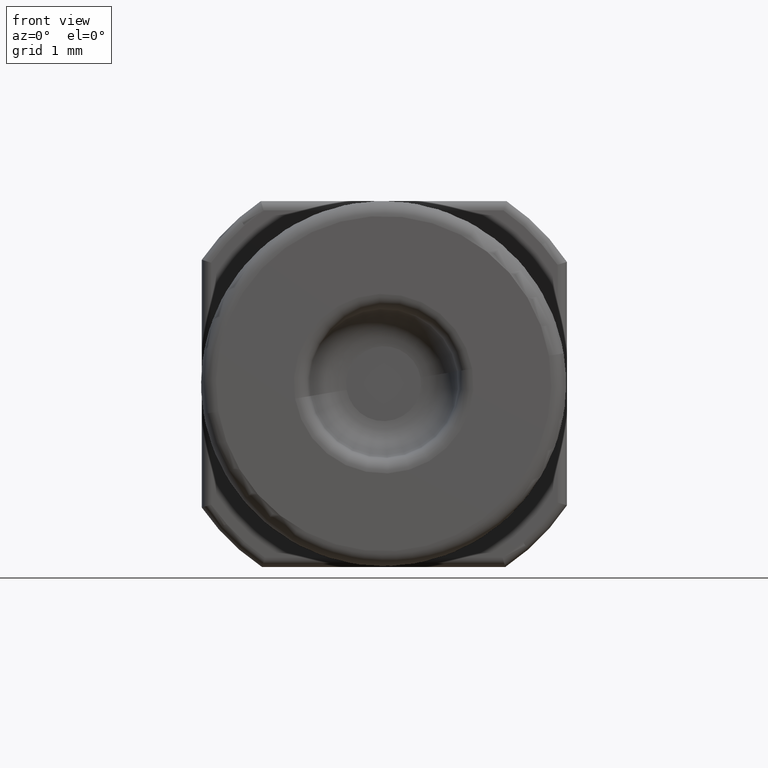
[diagram: clean part render]
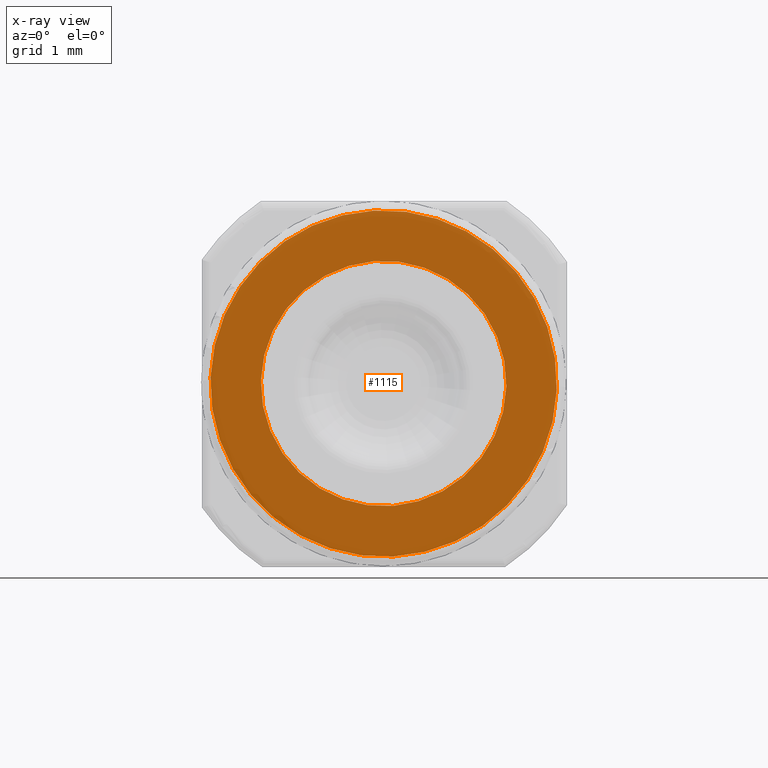
[diagram: x-ray — body ghosted, one internal face saturated and labeled with its STEP entity id]
A machine part, front view, then the same camera in x-ray: the body is ghosted and one INTERNAL B-rep face — a face not visible from any outside direction — is saturated and labeled: STEP entity #1115.
In plain terms, the highlighted planar face has unit normal (0, 1, 0).
Its self-contained STEP definition (entity closure, byte-faithful):
#216 = AXIS2_PLACEMENT_3D ( 'NONE', #1486, #2070, #2005 ) ;
#294 = VERTEX_POINT ( 'NONE', #5510 ) ;
#361 = EDGE_CURVE ( 'NONE', #7093, #3330, #1994, .T. ) ;
#535 = DIRECTION ( 'NONE',  ( 0.0000000000000000000, 0.0000000000000000000, 1.000000000000000000 ) ) ;
#793 = CIRCLE ( 'NONE', #6064, 0.09249999999999998501 ) ;
#1115 = ADVANCED_FACE ( 'NONE', ( #3307, #5474 ), #5514, .F. ) ;
#1187 = ORIENTED_EDGE ( 'NONE', *, *, #6964, .F. ) ;
#1273 = CIRCLE ( 'NONE', #216, 0.06555048182260250766 ) ;
#1325 = AXIS2_PLACEMENT_3D ( 'NONE', #5744, #4176, #3023 ) ;
#1486 = CARTESIAN_POINT ( 'NONE',  ( 0.02099999999999999437, 0.0000000000000000000, 0.0000000000000000000 ) ) ;
#1525 = AXIS2_PLACEMENT_3D ( 'NONE', #3339, #2749, #535 ) ;
#1538 = EDGE_CURVE ( 'NONE', #3330, #7093, #793, .T. ) ;
#1541 = DIRECTION ( 'NONE',  ( 0.0000000000000000000, 0.0000000000000000000, -1.000000000000000000 ) ) ;
#1994 = CIRCLE ( 'NONE', #1525, 0.09249999999999998501 ) ;
#2005 = DIRECTION ( 'NONE',  ( 0.0000000000000000000, 0.0000000000000000000, 1.000000000000000000 ) ) ;
#2070 = DIRECTION ( 'NONE',  ( -1.000000000000000000, -0.0000000000000000000, -0.0000000000000000000 ) ) ;
#2183 = CARTESIAN_POINT ( 'NONE',  ( 0.02099999999999999437, 1.163414459189985282E-17, -0.09249999999999998501 ) ) ;
#2284 = ORIENTED_EDGE ( 'NONE', *, *, #1538, .T. ) ;
#2598 = CARTESIAN_POINT ( 'NONE',  ( 0.02099999999999999437, 0.0000000000000000000, 0.0000000000000000000 ) ) ;
#2749 = DIRECTION ( 'NONE',  ( -1.000000000000000000, -0.0000000000000000000, -0.0000000000000000000 ) ) ;
#3023 = DIRECTION ( 'NONE',  ( 0.0000000000000000000, 0.0000000000000000000, 1.000000000000000000 ) ) ;
#3307 = FACE_BOUND ( 'NONE', #5239, .T. ) ;
#3330 = VERTEX_POINT ( 'NONE', #5050 ) ;
#3339 = CARTESIAN_POINT ( 'NONE',  ( 0.02099999999999999437, 0.0000000000000000000, 0.0000000000000000000 ) ) ;
#3785 = DIRECTION ( 'NONE',  ( 1.000000000000000000, 0.0000000000000000000, 0.0000000000000000000 ) ) ;
#4035 = EDGE_LOOP ( 'NONE', ( #2284, #6600 ) ) ;
#4176 = DIRECTION ( 'NONE',  ( -1.000000000000000000, -0.0000000000000000000, -0.0000000000000000000 ) ) ;
#4190 = CARTESIAN_POINT ( 'NONE',  ( 0.02099999999999999437, 0.0000000000000000000, 0.06555048182260250766 ) ) ;
#4264 = CIRCLE ( 'NONE', #1325, 0.06555048182260250766 ) ;
#4320 = DIRECTION ( 'NONE',  ( -1.000000000000000000, -0.0000000000000000000, -0.0000000000000000000 ) ) ;
#5050 = CARTESIAN_POINT ( 'NONE',  ( 0.02099999999999999437, 0.0000000000000000000, 0.09249999999999998501 ) ) ;
#5239 = EDGE_LOOP ( 'NONE', ( #6143, #1187 ) ) ;
#5474 = FACE_OUTER_BOUND ( 'NONE', #4035, .T. ) ;
#5510 = CARTESIAN_POINT ( 'NONE',  ( 0.02099999999999999437, 8.027618774661696295E-18, -0.06555048182260250766 ) ) ;
#5514 = PLANE ( 'NONE',  #5936 ) ;
#5744 = CARTESIAN_POINT ( 'NONE',  ( 0.02099999999999999437, 0.0000000000000000000, 0.0000000000000000000 ) ) ;
#5802 = EDGE_CURVE ( 'NONE', #6610, #294, #4264, .T. ) ;
#5936 = AXIS2_PLACEMENT_3D ( 'NONE', #7220, #3785, #1541 ) ;
#6064 = AXIS2_PLACEMENT_3D ( 'NONE', #2598, #4320, #6553 ) ;
#6143 = ORIENTED_EDGE ( 'NONE', *, *, #5802, .F. ) ;
#6553 = DIRECTION ( 'NONE',  ( 0.0000000000000000000, 0.0000000000000000000, 1.000000000000000000 ) ) ;
#6600 = ORIENTED_EDGE ( 'NONE', *, *, #361, .T. ) ;
#6610 = VERTEX_POINT ( 'NONE', #4190 ) ;
#6964 = EDGE_CURVE ( 'NONE', #294, #6610, #1273, .T. ) ;
#7093 = VERTEX_POINT ( 'NONE', #2183 ) ;
#7220 = CARTESIAN_POINT ( 'NONE',  ( 0.02099999999999999437, 1.938135400910456118E-18, 0.0000000000000000000 ) ) ;